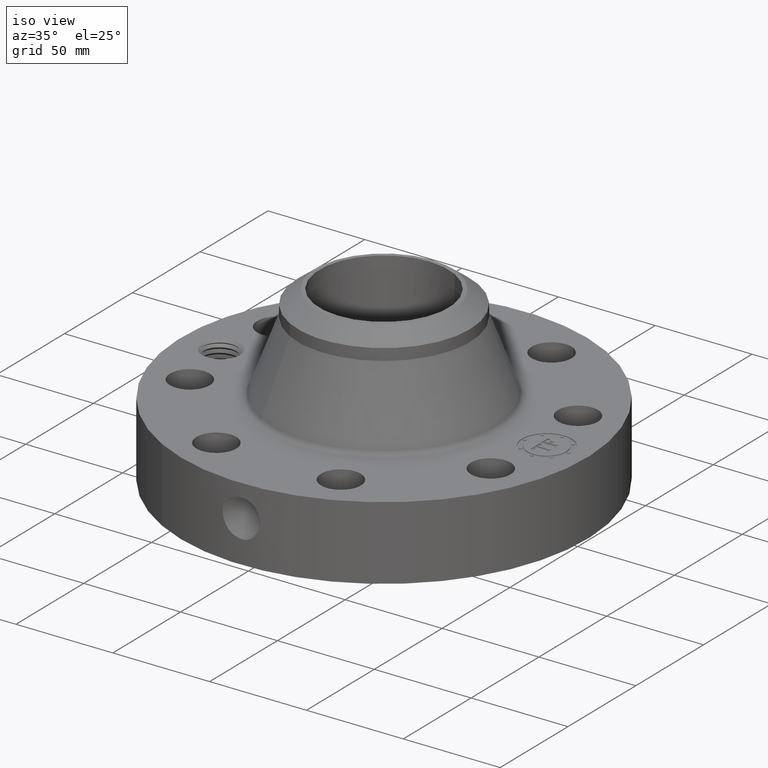
[diagram: clean part render]
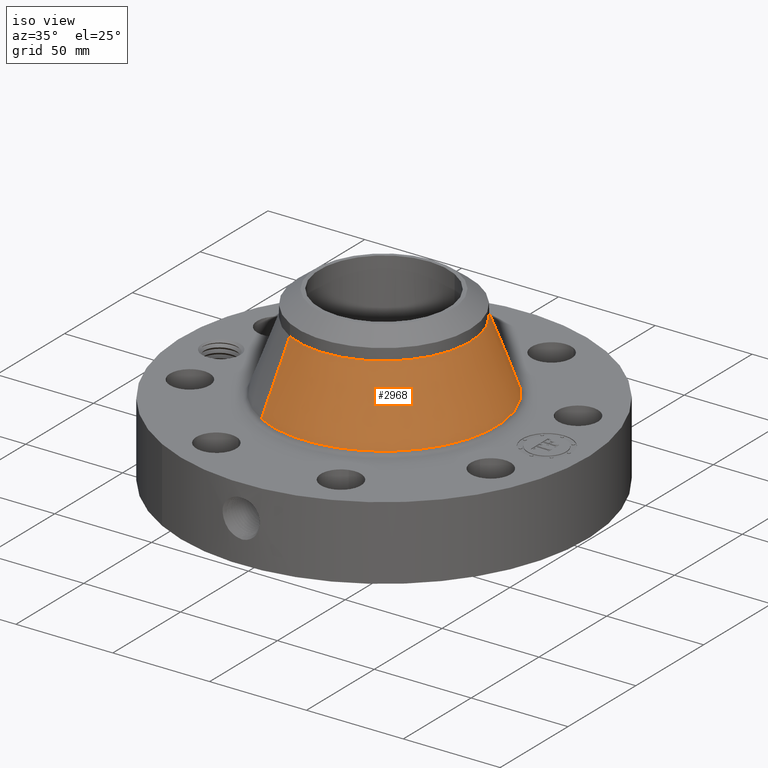
[diagram: same view with one face highlighted and labeled with its STEP entity id]
A machine part, iso view. The second image highlights one B-rep face of the part: STEP entity #2968.
In plain terms, the highlighted conical surface has half-angle 20.622 deg.
Its self-contained STEP definition (entity closure, byte-faithful):
#2235=AXIS2_PLACEMENT_3D('Circle Axis2P3D',#2233,#2234,$) ;
#2941=AXIS2_PLACEMENT_3D('Cone Axis2P3D',#2938,#2939,#2940) ;
#2952=AXIS2_PLACEMENT_3D('Circle Axis2P3D',#2950,#2951,$) ;
#2230=CARTESIAN_POINT('Vertex',(1.09344827404,2.00154363996,1.63773560366)) ;
#2233=CARTESIAN_POINT('Axis2P3D Location',(0.,0.,1.63773560366)) ;
#2237=CARTESIAN_POINT('Vertex',(-1.09344827404,-2.00154363996,1.63773560366)) ;
#2938=CARTESIAN_POINT('Axis2P3D Location',(0.,0.,3.04810975471)) ;
#2943=CARTESIAN_POINT('Line Origine',(0.966221483301,1.76865656164,2.34292267919)) ;
#2947=CARTESIAN_POINT('Vertex',(0.838994692561,1.53576948331,3.04810975471)) ;
#2950=CARTESIAN_POINT('Axis2P3D Location',(0.,0.,3.04810975471)) ;
#2954=CARTESIAN_POINT('Vertex',(-0.838994692561,-1.53576948331,3.04810975471)) ;
#2957=CARTESIAN_POINT('Line Origine',(-0.966221483301,-1.76865656164,2.34292267919)) ;
#2234=DIRECTION('Axis2P3D Direction',(0.,0.,-0.0393700787402)) ;
#2939=DIRECTION('Axis2P3D Direction',(0.,0.,-0.0393700787402)) ;
#2940=DIRECTION('Axis2P3D XDirection',(-0.0188750212049,-0.0345504945626,0.)) ;
#2944=DIRECTION('Vector Direction',(0.00664784481023,0.012168798301,-0.0368473826383)) ;
#2951=DIRECTION('Axis2P3D Direction',(0.,0.,-0.0393700787402)) ;
#2958=DIRECTION('Vector Direction',(-0.00664784481023,-0.012168798301,-0.0368473826383)) ;
#2945=VECTOR('Line Direction',#2944,0.0393700787402) ;
#2959=VECTOR('Line Direction',#2958,0.0393700787402) ;
#2963=ORIENTED_EDGE('',*,*,#2239,.F.) ;
#2964=ORIENTED_EDGE('',*,*,#2949,.T.) ;
#2965=ORIENTED_EDGE('',*,*,#2956,.T.) ;
#2966=ORIENTED_EDGE('',*,*,#2961,.F.) ;
#2968=ADVANCED_FACE('PartBody',(#2967),#2942,.T.) ;
#2236=CIRCLE('generated circle',#2235,2.28074682301) ;
#2953=CIRCLE('generated circle',#2952,1.75000000001) ;
#2942=CONICAL_SURFACE('Cone',#2941,1.75000000001,0.359924212387) ;
#2239=EDGE_CURVE('',#2231,#2238,#2236,.T.) ;
#2949=EDGE_CURVE('',#2231,#2948,#2946,.F.) ;
#2956=EDGE_CURVE('',#2948,#2955,#2953,.T.) ;
#2961=EDGE_CURVE('',#2238,#2955,#2960,.F.) ;
#2962=EDGE_LOOP('',(#2963,#2964,#2965,#2966)) ;
#2967=FACE_OUTER_BOUND('',#2962,.T.) ;
#2946=LINE('Line',#2943,#2945) ;
#2960=LINE('Line',#2957,#2959) ;
#2231=VERTEX_POINT('',#2230) ;
#2238=VERTEX_POINT('',#2237) ;
#2948=VERTEX_POINT('',#2947) ;
#2955=VERTEX_POINT('',#2954) ;